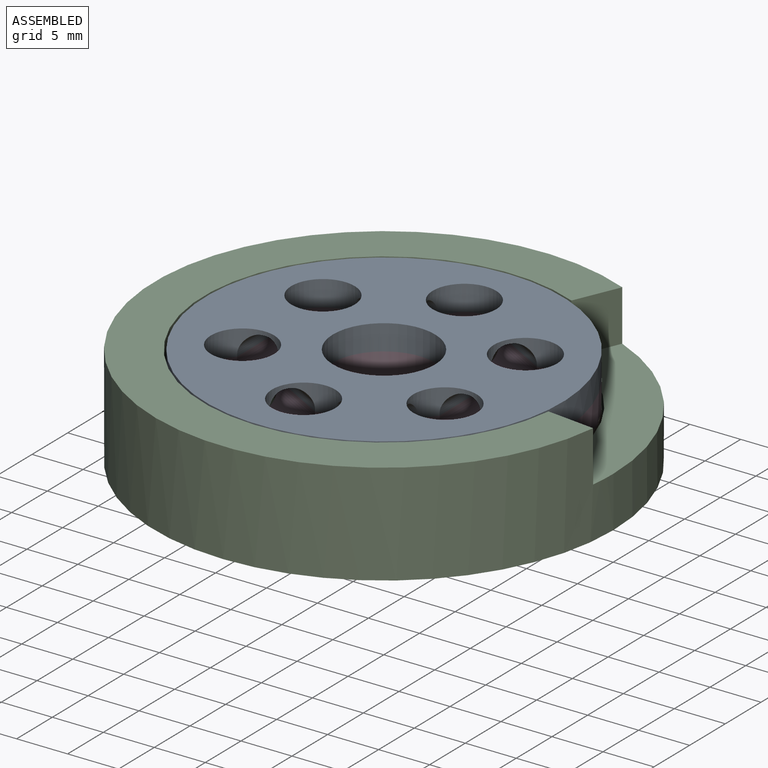
[diagram: assembled view]
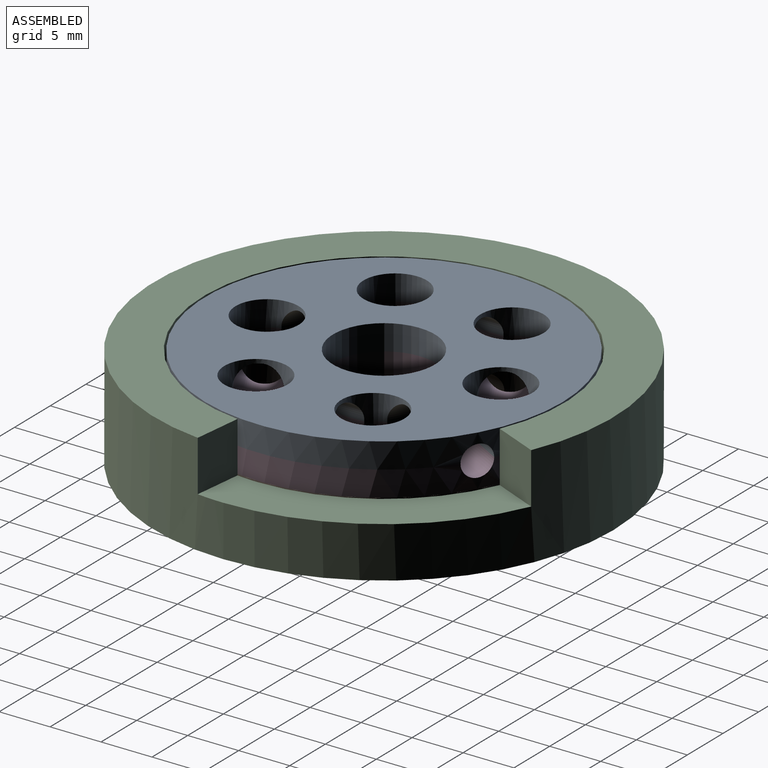
[diagram: assembled view, second angle]
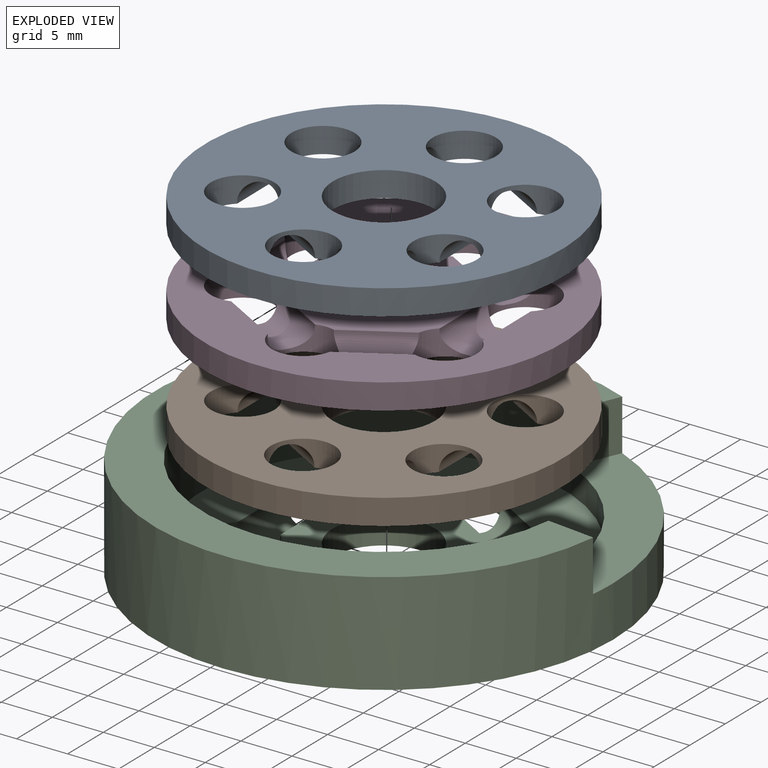
[diagram: exploded view]
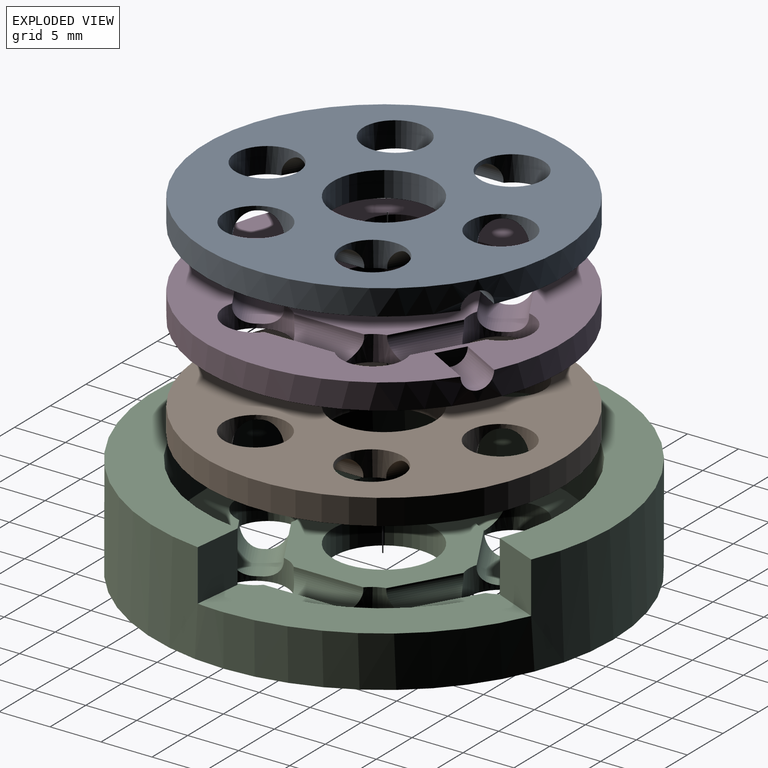
[diagram: exploded view, second angle]
ASSEMBLY  parts=4 mates=3
PART A: 43 faces, bbox 35x35x2.5 mm
  f0: plane 35x34.94mm, normal (0,0,1), area 416.8mm2, adj f1,f2,f3,f4,f5,f6,f7,f12
  f1: cylinder r=17.5mm len=35mm, axis (0,0,1), area 271.4mm2, adj f0,f10,f41
  f2: cylinder r=3.1mm len=6.2mm, axis (0,0,1), area 33.1mm2, adj f0,f8,f10,f23,f24,f25,f26,f27
  f3: cylinder r=3.1mm len=6.2mm, axis (0,0,1), area 33.1mm2, adj f0,f8,f10,f20,f21,f22,f23,f24
  f4: cylinder r=3.1mm len=6.2mm, axis (0,0,1), area 33.1mm2, adj f0,f8,f10,f14,f15,f16,f20,f21
  f5: cylinder r=3.1mm len=6.2mm, axis (0,0,1), area 33.1mm2, adj f0,f8,f10,f14,f15,f16,f17,f18
  f6: cylinder r=3.1mm len=6.2mm, axis (0,0,1), area 33.1mm2, adj f0,f8,f10,f11,f12,f13,f17,f18
  f7: cylinder r=3.1mm len=6.2mm, axis (0,0,1), area 33.1mm2, adj f0,f8,f10,f11,f12,f13,f26,f27
  f8: plane 16.88x15.55mm, normal (0,0,1), area 126.7mm2, adj f2,f3,f4,f5,f6,f7,f9,f13
  f9: cylinder r=5mm len=10mm, axis (0,0,1), area 78.5mm2, adj f8,f10
  f10: plane 35x35mm, normal (0,0,-1), area 702.4mm2, adj f1,f2,f3,f4,f5,f6,f7,f9
  f11: plane 4.71x2.95mm, normal (0,0,1), area 2.1mm2, adj f6,f7,f29,f30
  f12: plane 5.92x3.42mm, normal (0.5,0.87,0), area 1.4mm2, adj f0,f6,f7,f29
  f13: plane 5.92x3.42mm, normal (-0.5,-0.87,0), area 1.4mm2, adj f6,f7,f8,f30
  f14: plane 5.21x0.4mm, normal (0,0,1), area 2.1mm2, adj f4,f5,f33,f34
  f15: plane 6.84x0.2mm, normal (-1,0,0), area 1.4mm2, adj f0,f4,f5,f33
  f16: plane 6.84x0.2mm, normal (1,0,0), area 1.4mm2, adj f4,f5,f8,f34
  f17: plane 4.71x2.95mm, normal (0,0,1), area 2.1mm2, adj f5,f6,f31,f32
  f18: plane 5.92x3.42mm, normal (0.5,-0.87,0), area 1.4mm2, adj f5,f6,f8,f31
  f19: plane 5.92x3.42mm, normal (-0.5,0.87,0), area 1.4mm2, adj f0,f5,f6,f32
  f20: plane 4.71x2.95mm, normal (0,0,1), area 2.1mm2, adj f3,f4,f35,f36
  f21: plane 5.92x3.42mm, normal (0.5,0.87,0), area 1.4mm2, adj f3,f4,f8,f35
  f22: plane 5.92x3.42mm, normal (-0.5,-0.87,0), area 1.4mm2, adj f0,f3,f4,f36
  f23: plane 4.71x2.95mm, normal (0,0,1), area 2.1mm2, adj f2,f3,f37,f38
  f24: plane 5.92x3.42mm, normal (0.5,-0.87,0), area 1.4mm2, adj f0,f2,f3,f37
  f25: plane 5.92x3.42mm, normal (-0.5,0.87,0), area 1.4mm2, adj f2,f3,f8,f38
  f26: plane 5.21x0.4mm, normal (0,0,1), area 2.1mm2, adj f2,f7,f39,f40
  f27: plane 6.84x0.2mm, normal (-1,0,0), area 1.4mm2, adj f2,f7,f8,f39
  f28: plane 6.84x0.2mm, normal (1,0,0), area 1.4mm2, adj f0,f2,f7,f40
  f29: cylinder r=1.9mm len=6.87mm, axis (0.87,-0.5,0), area 18mm2, adj f6,f7,f11,f12
  f30: cylinder r=1.9mm len=6.87mm, axis (-0.87,0.5,0), area 18mm2, adj f6,f7,f11,f13
  f31: cylinder r=1.9mm len=6.87mm, axis (-0.87,-0.5,0), area 18mm2, adj f5,f6,f17,f18
  f32: cylinder r=1.9mm len=6.87mm, axis (0.87,0.5,0), area 18mm2, adj f5,f6,f17,f19
  f33: cylinder r=1.9mm len=6.84mm, axis (0,1,0), area 18mm2, adj f4,f5,f14,f15
  f34: cylinder r=1.9mm len=6.84mm, axis (0,-1,0), area 18mm2, adj f4,f5,f14,f16
  f35: cylinder r=1.9mm len=6.87mm, axis (0.87,-0.5,0), area 18mm2, adj f3,f4,f20,f21
  f36: cylinder r=1.9mm len=6.87mm, axis (-0.87,0.5,0), area 18mm2, adj f3,f4,f20,f22
  f37: cylinder r=1.9mm len=6.87mm, axis (-0.87,-0.5,0), area 18mm2, adj f2,f3,f23,f24
  f38: cylinder r=1.9mm len=6.87mm, axis (0.87,0.5,0), area 18mm2, adj f2,f3,f23,f25
  f39: cylinder r=1.9mm len=6.84mm, axis (0,1,0), area 18mm2, adj f2,f7,f26,f27
  f40: cylinder r=1.9mm len=6.84mm, axis (0,-1,0), area 18mm2, adj f2,f7,f26,f28
  f41: cylinder r=1.5mm len=5mm, axis (-1,0,0), area 23.4mm2, adj f0,f1,f42
  f42: plane 3x1.5mm, normal (1,0,0), area 3.5mm2, adj f0,f41
PART B: 41 faces, bbox 35x35x2.5 mm
  f0: cylinder r=3.1mm len=6.2mm, axis (0,0,1), area 33.1mm2, adj f6,f7,f10,f23,f24,f25,f26,f27
  f1: cylinder r=3.1mm len=6.2mm, axis (0,0,1), area 33.1mm2, adj f6,f7,f10,f20,f21,f22,f23,f24
  f2: cylinder r=3.1mm len=6.2mm, axis (0,0,1), area 33.1mm2, adj f6,f7,f10,f14,f15,f16,f20,f21
  f3: cylinder r=3.1mm len=6.2mm, axis (0,0,1), area 33.1mm2, adj f6,f7,f10,f14,f15,f16,f17,f18
  f4: cylinder r=3.1mm len=6.2mm, axis (0,0,1), area 33.1mm2, adj f6,f7,f10,f11,f12,f13,f17,f18
  f5: cylinder r=3.1mm len=6.2mm, axis (0,0,1), area 33.1mm2, adj f6,f7,f10,f11,f12,f13,f26,f27
  f6: plane 35x35mm, normal (0,0,1), area 431.7mm2, adj f0,f1,f2,f3,f4,f5,f9,f12
  f7: plane 16.88x15.55mm, normal (0,0,1), area 126.7mm2, adj f0,f1,f2,f3,f4,f5,f8,f13
  f8: cylinder r=5mm len=10mm, axis (0,0,1), area 78.5mm2, adj f7,f10
  f9: cylinder r=17.5mm len=35mm, axis (0,0,1), area 274.9mm2, adj f6,f10
  f10: plane 35x35mm, normal (0,0,-1), area 702.4mm2, adj f0,f1,f2,f3,f4,f5,f8,f9
  f11: plane 4.71x2.95mm, normal (0,0,1), area 2.1mm2, adj f4,f5,f29,f30
  f12: plane 5.92x3.42mm, normal (0.5,0.87,0), area 1.4mm2, adj f4,f5,f6,f29
  f13: plane 5.92x3.42mm, normal (-0.5,-0.87,0), area 1.4mm2, adj f4,f5,f7,f30
  f14: plane 5.21x0.4mm, normal (0,0,1), area 2.1mm2, adj f2,f3,f33,f34
  f15: plane 6.84x0.2mm, normal (-1,0,0), area 1.4mm2, adj f2,f3,f6,f33
  f16: plane 6.84x0.2mm, normal (1,0,0), area 1.4mm2, adj f2,f3,f7,f34
  f17: plane 4.71x2.95mm, normal (0,0,1), area 2.1mm2, adj f3,f4,f31,f32
  f18: plane 5.92x3.42mm, normal (0.5,-0.87,0), area 1.4mm2, adj f3,f4,f7,f31
  f19: plane 5.92x3.42mm, normal (-0.5,0.87,0), area 1.4mm2, adj f3,f4,f6,f32
  f20: plane 4.71x2.95mm, normal (0,0,1), area 2.1mm2, adj f1,f2,f35,f36
  f21: plane 5.92x3.42mm, normal (0.5,0.87,0), area 1.4mm2, adj f1,f2,f7,f35
  f22: plane 5.92x3.42mm, normal (-0.5,-0.87,0), area 1.4mm2, adj f1,f2,f6,f36
  f23: plane 4.71x2.95mm, normal (0,0,1), area 2.1mm2, adj f0,f1,f37,f38
  f24: plane 5.92x3.42mm, normal (0.5,-0.87,0), area 1.4mm2, adj f0,f1,f6,f37
  f25: plane 5.92x3.42mm, normal (-0.5,0.87,0), area 1.4mm2, adj f0,f1,f7,f38
  f26: plane 5.21x0.4mm, normal (0,0,1), area 2.1mm2, adj f0,f5,f39,f40
  f27: plane 6.84x0.2mm, normal (-1,0,0), area 1.4mm2, adj f0,f5,f7,f39
  f28: plane 6.84x0.2mm, normal (1,0,0), area 1.4mm2, adj f0,f5,f6,f40
  f29: cylinder r=1.9mm len=6.87mm, axis (0.87,-0.5,0), area 18mm2, adj f4,f5,f11,f12
  f30: cylinder r=1.9mm len=6.87mm, axis (-0.87,0.5,0), area 18mm2, adj f4,f5,f11,f13
  f31: cylinder r=1.9mm len=6.87mm, axis (-0.87,-0.5,0), area 18mm2, adj f3,f4,f17,f18
  f32: cylinder r=1.9mm len=6.87mm, axis (0.87,0.5,0), area 18mm2, adj f3,f4,f17,f19
  f33: cylinder r=1.9mm len=6.84mm, axis (0,1,0), area 18mm2, adj f2,f3,f14,f15
  f34: cylinder r=1.9mm len=6.84mm, axis (0,-1,0), area 18mm2, adj f2,f3,f14,f16
  f35: cylinder r=1.9mm len=6.87mm, axis (0.87,-0.5,0), area 18mm2, adj f1,f2,f20,f21
  f36: cylinder r=1.9mm len=6.87mm, axis (-0.87,0.5,0), area 18mm2, adj f1,f2,f20,f22
  f37: cylinder r=1.9mm len=6.87mm, axis (-0.87,-0.5,0), area 18mm2, adj f0,f1,f23,f24
  f38: cylinder r=1.9mm len=6.87mm, axis (0.87,0.5,0), area 18mm2, adj f0,f1,f23,f25
  f39: cylinder r=1.9mm len=6.84mm, axis (0,1,0), area 18mm2, adj f0,f5,f26,f27
  f40: cylinder r=1.9mm len=6.84mm, axis (0,-1,0), area 18mm2, adj f0,f5,f26,f28
PART C: 46 faces, bbox 45x45x10 mm
  f0: cylinder r=3.1mm len=6.2mm, axis (0,0,1), area 33.1mm2, adj f6,f7,f9,f22,f23,f24,f25,f26
  f1: cylinder r=3.1mm len=6.2mm, axis (0,0,1), area 33.1mm2, adj f6,f7,f9,f19,f20,f21,f22,f23
  f2: cylinder r=3.1mm len=6.2mm, axis (0,0,1), area 33.1mm2, adj f6,f7,f9,f13,f14,f15,f19,f20
  f3: cylinder r=3.1mm len=6.2mm, axis (0,0,1), area 33.1mm2, adj f6,f7,f9,f13,f14,f15,f16,f17
  f4: cylinder r=3.1mm len=6.2mm, axis (0,0,1), area 33.1mm2, adj f6,f7,f9,f10,f11,f12,f16,f17
  f5: cylinder r=3.1mm len=6.2mm, axis (0,0,1), area 33.1mm2, adj f6,f7,f9,f10,f11,f12,f25,f26
  f6: plane 35.4x35.4mm, normal (0,0,1), area 453.8mm2, adj f0,f1,f2,f3,f4,f5,f11,f14
  f7: plane 16.88x15.55mm, normal (0,0,1), area 126.7mm2, adj f0,f1,f2,f3,f4,f5,f8,f12
  f8: cylinder r=5mm len=10mm, axis (0,0,1), area 78.5mm2, adj f7,f9
  f9: plane 45x45mm, normal (0,0,-1), area 1330.7mm2, adj f0,f1,f2,f3,f4,f5,f8,f40
  f10: plane 4.71x2.95mm, normal (0,0,1), area 2.1mm2, adj f4,f5,f28,f29
  f11: plane 5.92x3.42mm, normal (0.5,0.87,0), area 1.4mm2, adj f4,f5,f6,f28
  f12: plane 5.92x3.42mm, normal (-0.5,-0.87,0), area 1.4mm2, adj f4,f5,f7,f29
  f13: plane 5.21x0.4mm, normal (0,0,1), area 2.1mm2, adj f2,f3,f32,f33
  f14: plane 6.84x0.2mm, normal (-1,0,0), area 1.4mm2, adj f2,f3,f6,f32
  f15: plane 6.84x0.2mm, normal (1,0,0), area 1.4mm2, adj f2,f3,f7,f33
  f16: plane 4.71x2.95mm, normal (0,0,1), area 2.1mm2, adj f3,f4,f30,f31
  f17: plane 5.92x3.42mm, normal (0.5,-0.87,0), area 1.4mm2, adj f3,f4,f7,f30
  f18: plane 5.92x3.42mm, normal (-0.5,0.87,0), area 1.4mm2, adj f3,f4,f6,f31
  f19: plane 4.71x2.95mm, normal (0,0,1), area 2.1mm2, adj f1,f2,f34,f35
  f20: plane 5.92x3.42mm, normal (0.5,0.87,0), area 1.4mm2, adj f1,f2,f7,f34
  f21: plane 5.92x3.42mm, normal (-0.5,-0.87,0), area 1.4mm2, adj f1,f2,f6,f35
  f22: plane 4.71x2.95mm, normal (0,0,1), area 2.1mm2, adj f0,f1,f36,f37
  f23: plane 5.92x3.42mm, normal (0.5,-0.87,0), area 1.4mm2, adj f0,f1,f6,f36
  f24: plane 5.92x3.42mm, normal (-0.5,0.87,0), area 1.4mm2, adj f0,f1,f7,f37
  f25: plane 5.21x0.4mm, normal (0,0,1), area 2.1mm2, adj f0,f5,f38,f39
  f26: plane 6.84x0.2mm, normal (-1,0,0), area 1.4mm2, adj f0,f5,f7,f38
  f27: plane 6.84x0.2mm, normal (1,0,0), area 1.4mm2, adj f0,f5,f6,f39
  f28: cylinder r=1.9mm len=6.87mm, axis (0.87,-0.5,0), area 18mm2, adj f4,f5,f10,f11
  f29: cylinder r=1.9mm len=6.87mm, axis (-0.87,0.5,0), area 18mm2, adj f4,f5,f10,f12
  f30: cylinder r=1.9mm len=6.87mm, axis (-0.87,-0.5,0), area 18mm2, adj f3,f4,f16,f17
  f31: cylinder r=1.9mm len=6.87mm, axis (0.87,0.5,0), area 18mm2, adj f3,f4,f16,f18
  f32: cylinder r=1.9mm len=6.84mm, axis (0,1,0), area 18mm2, adj f2,f3,f13,f14
  f33: cylinder r=1.9mm len=6.84mm, axis (0,-1,0), area 18mm2, adj f2,f3,f13,f15
  f34: cylinder r=1.9mm len=6.87mm, axis (0.87,-0.5,0), area 18mm2, adj f1,f2,f19,f20
  f35: cylinder r=1.9mm len=6.87mm, axis (-0.87,0.5,0), area 18mm2, adj f1,f2,f19,f21
  f36: cylinder r=1.9mm len=6.87mm, axis (-0.87,-0.5,0), area 18mm2, adj f0,f1,f22,f23
  f37: cylinder r=1.9mm len=6.87mm, axis (0.87,0.5,0), area 18mm2, adj f0,f1,f22,f24
  f38: cylinder r=1.9mm len=6.84mm, axis (0,1,0), area 18mm2, adj f0,f5,f25,f26
  f39: cylinder r=1.9mm len=6.84mm, axis (0,-1,0), area 18mm2, adj f0,f5,f25,f27
  f40: cylinder r=22.5mm len=45mm, axis (0,0,1), area 1269.6mm2, adj f9,f41,f43,f44,f45
  f41: plane 23.29x15.5mm, normal (0,0,1), area 123.6mm2, adj f40,f42,f43,f44
  f42: cylinder r=17.7mm len=35.4mm, axis (0,0,1), area 720.7mm2, adj f6,f41,f43,f44,f45
  f43: plane 5x4.41mm, normal (0.92,-0.4,0), area 24mm2, adj f40,f41,f42,f45
  f44: plane 5x4.77mm, normal (0.12,0.99,0), area 24mm2, adj f40,f41,f42,f45
  f45: plane 45x44.85mm, normal (0,0,1), area 482.6mm2, adj f40,f42,f43,f44
PART D: same geometry as A
PLACE A rot(axis=(-0.86,-0.5,0),180deg) t=(-2.85,-3.75,3.1)mm
PLACE B rot(axis=(0,1,0),180deg) t=(-2.85,-3.75,-1.9)mm
PLACE C t=(-2.85,-3.75,-1.9)mm fixed
PLACE D rot(axis=(0,0,1),60.5deg) t=(-2.85,-3.75,3.1)mm
MATE fastened D.f4 <-> A.f5  axis (0,0,1) through (-2.95,7.65,3.1)mm
MATE revolute D.f1 <-> B.f8  axis (0,0,-1) through (-2.85,-3.75,0.6)mm
MATE fastened B.f1 <-> C.f1  axis (0,0,-1) through (-2.85,7.65,-1.9)mm
